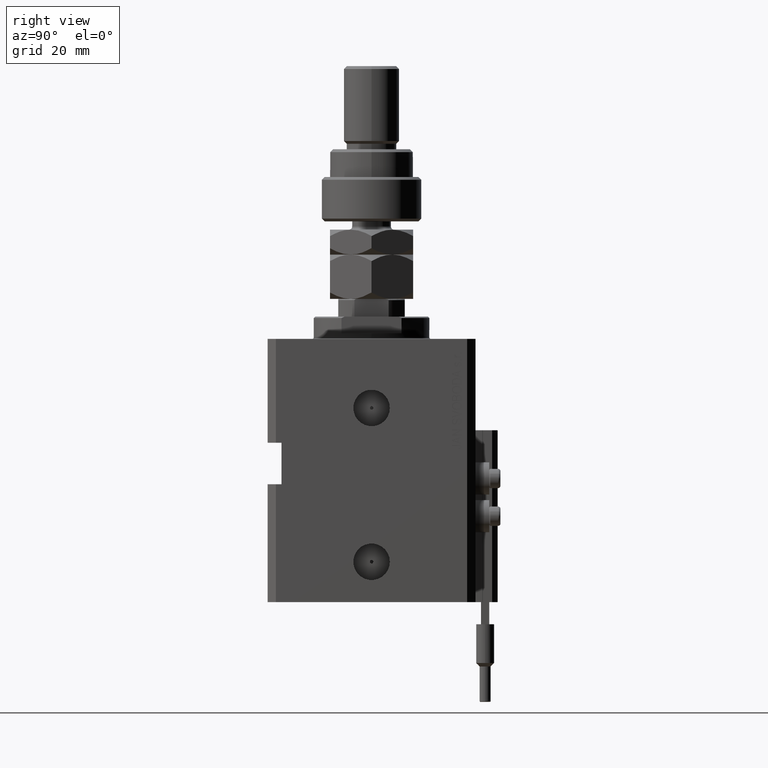
[diagram: clean part render]
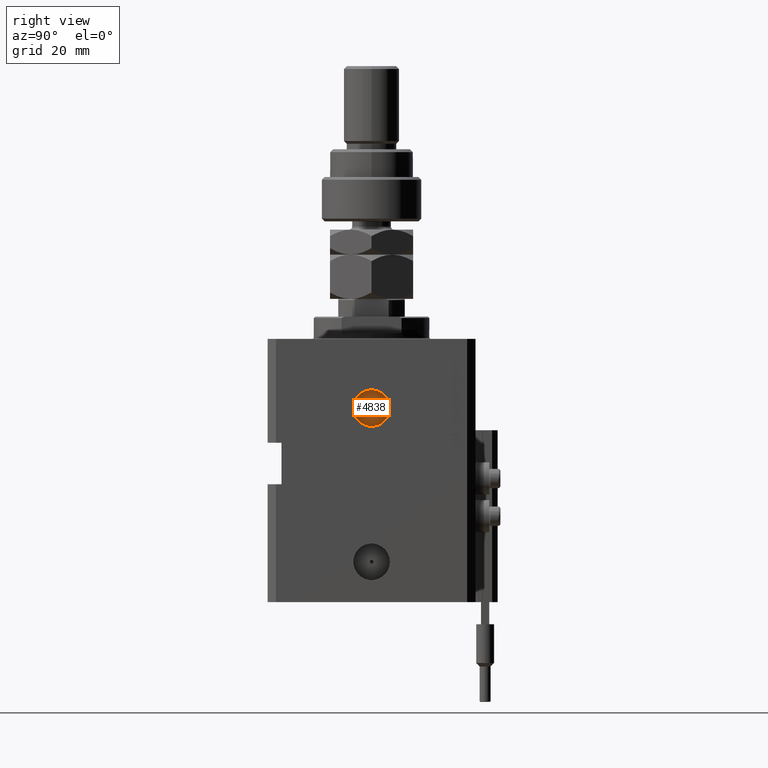
[diagram: same view with one face highlighted and labeled with its STEP entity id]
A machine part, right view. The second image highlights one B-rep face of the part: STEP entity #4838.
In plain terms, the highlighted planar face has unit normal (1, -0, 0).
Its self-contained STEP definition (entity closure, byte-faithful):
#1272 = CARTESIAN_POINT ( 'NONE',  ( 36.90000000000026148, -1.972788648655428513E-13, -25.00000000000000000 ) ) ;
#1755 = ORIENTED_EDGE ( 'NONE', *, *, #10559, .F. ) ;
#2191 = CARTESIAN_POINT ( 'NONE',  ( 36.90000000000026148, -1.972788648655428513E-13, -25.00000000000000000 ) ) ;
#4838 = ADVANCED_FACE ( 'NONE', ( #42283, #10834 ), #14499, .T. ) ;
#6035 = CIRCLE ( 'NONE', #35288, 6.580000000000002736 ) ;
#6322 = VERTEX_POINT ( 'NONE', #40406 ) ;
#10559 = EDGE_CURVE ( 'NONE', #32353, #22018, #20747, .T. ) ;
#10834 = FACE_OUTER_BOUND ( 'NONE', #20022, .T. ) ;
#11997 = CARTESIAN_POINT ( 'NONE',  ( 36.90000000000026859, 0.6249999999998014921, -25.00000000000000000 ) ) ;
#14499 = PLANE ( 'NONE',  #39770 ) ;
#16475 = AXIS2_PLACEMENT_3D ( 'NONE', #1272, #37666, #28768 ) ;
#17338 = CARTESIAN_POINT ( 'NONE',  ( 36.90000000000025437, -0.6250000000001961764, -25.00000000000000000 ) ) ;
#18170 = CIRCLE ( 'NONE', #16475, 6.580000000000002736 ) ;
#18172 = DIRECTION ( 'NONE',  ( 1.334402673828349134E-14, 1.000000000000000000, 0.000000000000000000 ) ) ;
#20022 = EDGE_LOOP ( 'NONE', ( #44917, #27651 ) ) ;
#20080 = CARTESIAN_POINT ( 'NONE',  ( 36.90000000000026148, -1.972788648655428260E-13, -25.00000000000000000 ) ) ;
#20747 = CIRCLE ( 'NONE', #34098, 0.6249999999999987788 ) ;
#22018 = VERTEX_POINT ( 'NONE', #11997 ) ;
#23752 = DIRECTION ( 'NONE',  ( 1.000000000000000000, -1.334402673828349134E-14, 0.000000000000000000 ) ) ;
#25345 = CARTESIAN_POINT ( 'NONE',  ( 36.90000000000026148, -1.972788648655428513E-13, -25.00000000000000000 ) ) ;
#26303 = ORIENTED_EDGE ( 'NONE', *, *, #40705, .F. ) ;
#27309 = DIRECTION ( 'NONE',  ( 1.000000000000000000, -1.334402673828349134E-14, 0.000000000000000000 ) ) ;
#27609 = CARTESIAN_POINT ( 'NONE',  ( 36.90000000000026148, -1.972788648655428260E-13, -25.00000000000000000 ) ) ;
#27651 = ORIENTED_EDGE ( 'NONE', *, *, #37287, .T. ) ;
#28768 = DIRECTION ( 'NONE',  ( 1.370906090437597808E-14, 1.000000000000000000, 0.000000000000000000 ) ) ;
#31854 = DIRECTION ( 'NONE',  ( 1.110223024625158749E-14, 1.000000000000000000, 0.000000000000000000 ) ) ;
#32047 = CIRCLE ( 'NONE', #46360, 0.6249999999999987788 ) ;
#32353 = VERTEX_POINT ( 'NONE', #17338 ) ;
#32674 = DIRECTION ( 'NONE',  ( 1.000000000000000000, -1.334402673828349134E-14, 0.000000000000000000 ) ) ;
#34098 = AXIS2_PLACEMENT_3D ( 'NONE', #20080, #23752, #31854 ) ;
#34439 = DIRECTION ( 'NONE',  ( 1.110223024625158749E-14, 1.000000000000000000, 0.000000000000000000 ) ) ;
#35288 = AXIS2_PLACEMENT_3D ( 'NONE', #25345, #32674, #37396 ) ;
#36504 = CARTESIAN_POINT ( 'NONE',  ( 36.90000000000016911, -6.580000000000199023, -25.00000000000000000 ) ) ;
#37287 = EDGE_CURVE ( 'NONE', #42356, #6322, #6035, .T. ) ;
#37396 = DIRECTION ( 'NONE',  ( 1.370906090437597808E-14, 1.000000000000000000, 0.000000000000000000 ) ) ;
#37666 = DIRECTION ( 'NONE',  ( 1.000000000000000000, -1.334402673828349134E-14, 0.000000000000000000 ) ) ;
#39770 = AXIS2_PLACEMENT_3D ( 'NONE', #2191, #27309, #18172 ) ;
#39969 = EDGE_LOOP ( 'NONE', ( #26303, #1755 ) ) ;
#40406 = CARTESIAN_POINT ( 'NONE',  ( 36.90000000000034674, 6.579999999999805560, -25.00000000000000000 ) ) ;
#40705 = EDGE_CURVE ( 'NONE', #22018, #32353, #32047, .T. ) ;
#42283 = FACE_BOUND ( 'NONE', #39969, .T. ) ;
#42356 = VERTEX_POINT ( 'NONE', #36504 ) ;
#44917 = ORIENTED_EDGE ( 'NONE', *, *, #51822, .T. ) ;
#46360 = AXIS2_PLACEMENT_3D ( 'NONE', #27609, #51243, #34439 ) ;
#51243 = DIRECTION ( 'NONE',  ( 1.000000000000000000, -1.334402673828349134E-14, 0.000000000000000000 ) ) ;
#51822 = EDGE_CURVE ( 'NONE', #6322, #42356, #18170, .T. ) ;